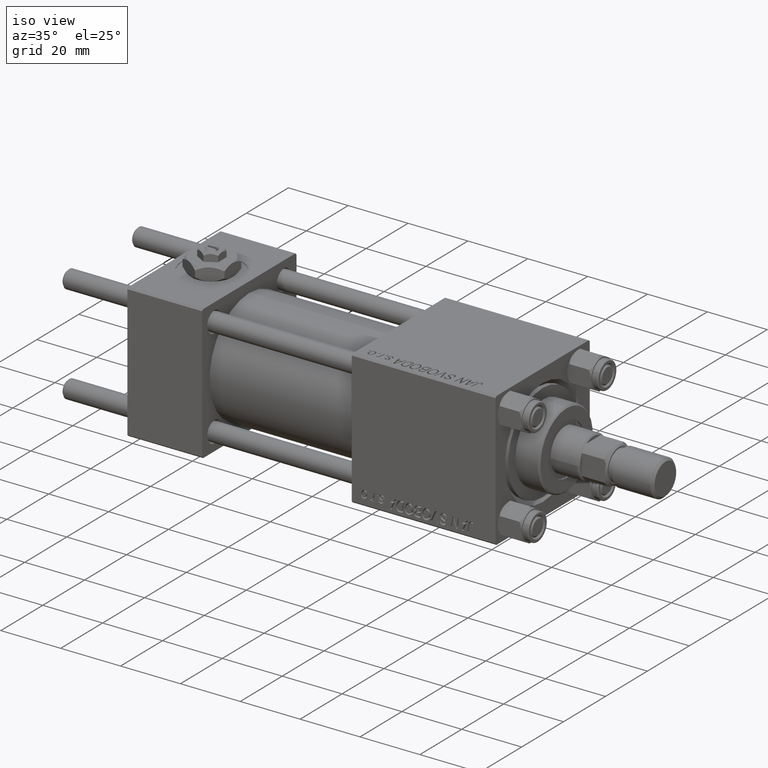
[diagram: clean part render]
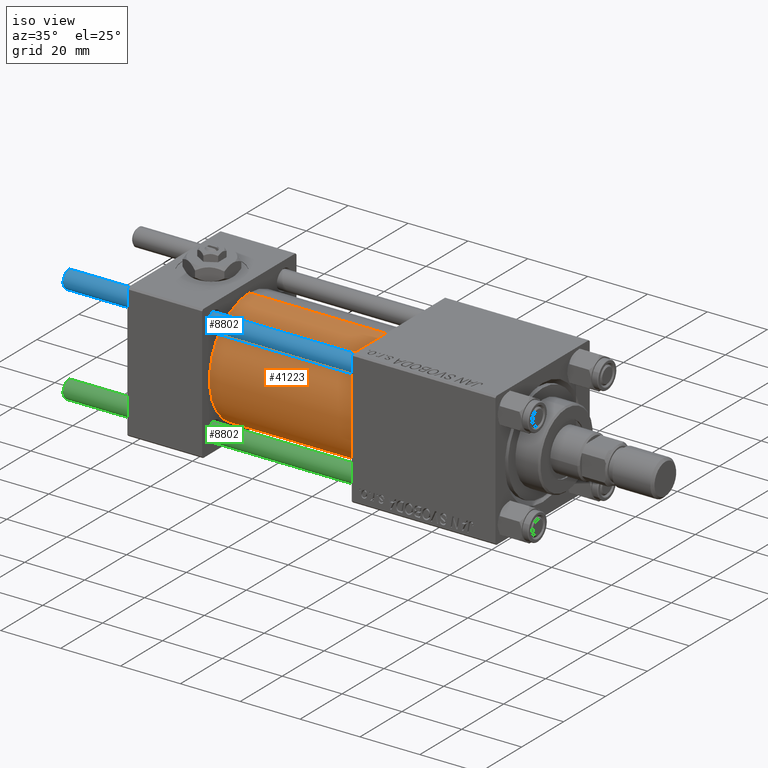
[diagram: same view with three faces highlighted in distinct colors, each labeled with its STEP entity id]
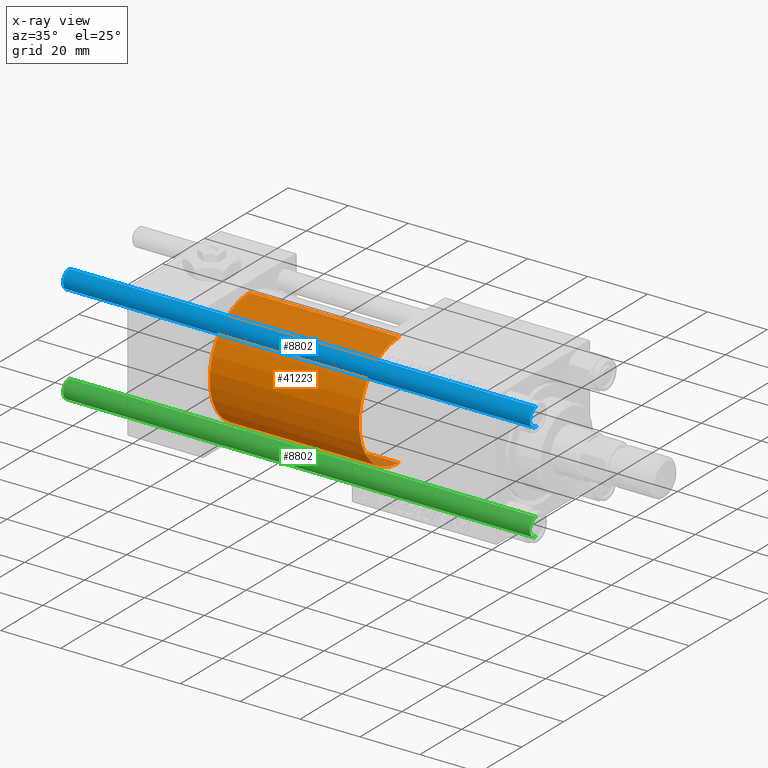
[diagram: x-ray of the same camera — body ghosted, the three highlighted faces saturated]
A machine part, iso view with three faces highlighted in distinct colors.
The next image is the same camera in x-ray (body ghosted, the three faces saturated) — at least one of them is partly hidden behind the body in this view.
Their STEP definitions:

[orange] entity #41223 — the highlighted cylindrical surface (partial cylindrical patch) has radius 19 mm, axis along (-1, -0, -0).
#843 = CARTESIAN_POINT ( 'NONE',  ( 75.00000000000001421, 0.000000000000000000, 0.000000000000000000 ) ) ;
#3151 = CARTESIAN_POINT ( 'NONE',  ( 75.00000000000001421, 2.326828918379970970E-15, -19.00000000000000000 ) ) ;
#3247 = AXIS2_PLACEMENT_3D ( 'NONE', #6762, #46779, #10705 ) ;
#3901 = VECTOR ( 'NONE', #21956, 1000.000000000000000 ) ;
#6444 = EDGE_CURVE ( 'NONE', #34576, #20000, #9312, .T. ) ;
#6762 = CARTESIAN_POINT ( 'NONE',  ( 75.00000000000001421, 0.000000000000000000, 0.000000000000000000 ) ) ;
#8308 = DIRECTION ( 'NONE',  ( 1.000000000000000000, -0.000000000000000000, 0.000000000000000000 ) ) ;
#9312 = LINE ( 'NONE', #9572, #3901 ) ;
#9572 = CARTESIAN_POINT ( 'NONE',  ( 75.00000000000001421, 0.000000000000000000, 19.00000000000000000 ) ) ;
#10611 = VERTEX_POINT ( 'NONE', #48091 ) ;
#10705 = DIRECTION ( 'NONE',  ( 0.000000000000000000, 0.000000000000000000, 1.000000000000000000 ) ) ;
#11592 = VECTOR ( 'NONE', #29809, 1000.000000000000000 ) ;
#12856 = EDGE_CURVE ( 'NONE', #20000, #10611, #13884, .T. ) ;
#13884 = CIRCLE ( 'NONE', #22312, 19.00000000000000000 ) ;
#17697 = CIRCLE ( 'NONE', #35351, 19.00000000000000000 ) ;
#18228 = LINE ( 'NONE', #34538, #11592 ) ;
#19350 = ORIENTED_EDGE ( 'NONE', *, *, #6444, .T. ) ;
#20000 = VERTEX_POINT ( 'NONE', #23204 ) ;
#20867 = DIRECTION ( 'NONE',  ( 1.000000000000000000, 0.000000000000000000, 0.000000000000000000 ) ) ;
#21191 = DIRECTION ( 'NONE',  ( 0.000000000000000000, 0.000000000000000000, 1.000000000000000000 ) ) ;
#21956 = DIRECTION ( 'NONE',  ( -1.000000000000000000, -0.000000000000000000, -0.000000000000000000 ) ) ;
#22148 = VERTEX_POINT ( 'NONE', #3151 ) ;
#22312 = AXIS2_PLACEMENT_3D ( 'NONE', #24625, #8308, #21191 ) ;
#23204 = CARTESIAN_POINT ( 'NONE',  ( 25.00000000000000000, 0.000000000000000000, 19.00000000000000000 ) ) ;
#23826 = ORIENTED_EDGE ( 'NONE', *, *, #46570, .F. ) ;
#24625 = CARTESIAN_POINT ( 'NONE',  ( 25.00000000000000000, 0.000000000000000000, 0.000000000000000000 ) ) ;
#24836 = ORIENTED_EDGE ( 'NONE', *, *, #12856, .T. ) ;
#25731 = CARTESIAN_POINT ( 'NONE',  ( 75.00000000000001421, 0.000000000000000000, 19.00000000000000000 ) ) ;
#26790 = EDGE_LOOP ( 'NONE', ( #38263, #23826, #19350, #24836 ) ) ;
#29809 = DIRECTION ( 'NONE',  ( -1.000000000000000000, -0.000000000000000000, -0.000000000000000000 ) ) ;
#32977 = DIRECTION ( 'NONE',  ( 0.000000000000000000, 0.000000000000000000, -1.000000000000000000 ) ) ;
#34538 = CARTESIAN_POINT ( 'NONE',  ( 75.00000000000001421, 2.326828918379970970E-15, -19.00000000000000000 ) ) ;
#34576 = VERTEX_POINT ( 'NONE', #25731 ) ;
#34665 = CYLINDRICAL_SURFACE ( 'NONE', #3247, 19.00000000000000000 ) ;
#35351 = AXIS2_PLACEMENT_3D ( 'NONE', #843, #20867, #32977 ) ;
#38263 = ORIENTED_EDGE ( 'NONE', *, *, #40386, .F. ) ;
#40386 = EDGE_CURVE ( 'NONE', #22148, #10611, #18228, .T. ) ;
#41223 = ADVANCED_FACE ( 'NONE', ( #48258 ), #34665, .T. ) ;
#46570 = EDGE_CURVE ( 'NONE', #34576, #22148, #17697, .T. ) ;
#46779 = DIRECTION ( 'NONE',  ( -1.000000000000000000, -0.000000000000000000, -0.000000000000000000 ) ) ;
#48091 = CARTESIAN_POINT ( 'NONE',  ( 25.00000000000000000, 2.326828918379970970E-15, -19.00000000000000000 ) ) ;
#48258 = FACE_OUTER_BOUND ( 'NONE', #26790, .T. ) ;

[blue] entity #8802 — the highlighted cylindrical surface (edge-blend (fillet) strip) has radius 3 mm, axis along (1, -0, 0).
#3026 = CIRCLE ( 'NONE', #32455, 3.000000000000000444 ) ;
#5032 = VECTOR ( 'NONE', #9391, 1000.000000000000000 ) ;
#6239 = VERTEX_POINT ( 'NONE', #15425 ) ;
#8802 = ADVANCED_FACE ( 'NONE', ( #13151 ), #21314, .T. ) ;
#9391 = DIRECTION ( 'NONE',  ( -0.000000000000000000, -0.000000000000000000, -1.000000000000000000 ) ) ;
#9465 = DIRECTION ( 'NONE',  ( -0.000000000000000000, -0.000000000000000000, -1.000000000000000000 ) ) ;
#13151 = FACE_OUTER_BOUND ( 'NONE', #49202, .T. ) ;
#14133 = DIRECTION ( 'NONE',  ( 0.000000000000000000, 0.000000000000000000, -1.000000000000000000 ) ) ;
#14659 = DIRECTION ( 'NONE',  ( 1.000000000000000000, 0.000000000000000000, 0.000000000000000000 ) ) ;
#14961 = AXIS2_PLACEMENT_3D ( 'NONE', #34133, #14133, #14659 ) ;
#15425 = CARTESIAN_POINT ( 'NONE',  ( 3.000000000000000444, 3.673940397442060361E-16, 156.5000000000000284 ) ) ;
#15446 = AXIS2_PLACEMENT_3D ( 'NONE', #29221, #9465, #25534 ) ;
#19984 = CIRCLE ( 'NONE', #14961, 3.000000000000000444 ) ;
#21314 = CYLINDRICAL_SURFACE ( 'NONE', #15446, 3.000000000000000444 ) ;
#21751 = ORIENTED_EDGE ( 'NONE', *, *, #36739, .T. ) ;
#25534 = DIRECTION ( 'NONE',  ( -1.000000000000000000, 0.000000000000000000, 0.000000000000000000 ) ) ;
#26683 = VERTEX_POINT ( 'NONE', #46648 ) ;
#29221 = CARTESIAN_POINT ( 'NONE',  ( 0.000000000000000000, 0.000000000000000000, 157.0000000000000000 ) ) ;
#29574 = VERTEX_POINT ( 'NONE', #43962 ) ;
#30171 = CARTESIAN_POINT ( 'NONE',  ( 0.000000000000000000, 0.000000000000000000, 0.4999999999999726885 ) ) ;
#31200 = EDGE_CURVE ( 'NONE', #26683, #29574, #31304, .T. ) ;
#31304 = LINE ( 'NONE', #47089, #32741 ) ;
#32455 = AXIS2_PLACEMENT_3D ( 'NONE', #30171, #51204, #35149 ) ;
#32583 = CARTESIAN_POINT ( 'NONE',  ( 3.000000000000000444, 3.673940397442060361E-16, 157.0000000000000000 ) ) ;
#32741 = VECTOR ( 'NONE', #46831, 1000.000000000000000 ) ;
#32992 = ORIENTED_EDGE ( 'NONE', *, *, #39784, .T. ) ;
#34133 = CARTESIAN_POINT ( 'NONE',  ( 0.000000000000000000, 0.000000000000000000, 156.5000000000000284 ) ) ;
#35149 = DIRECTION ( 'NONE',  ( 1.000000000000000000, 0.000000000000000000, 0.000000000000000000 ) ) ;
#35899 = CARTESIAN_POINT ( 'NONE',  ( 3.000000000000000444, 3.673940397442060361E-16, 0.4999999999999726885 ) ) ;
#36739 = EDGE_CURVE ( 'NONE', #47257, #29574, #3026, .T. ) ;
#39784 = EDGE_CURVE ( 'NONE', #26683, #6239, #19984, .T. ) ;
#43672 = ORIENTED_EDGE ( 'NONE', *, *, #45906, .T. ) ;
#43962 = CARTESIAN_POINT ( 'NONE',  ( -3.000000000000000444, 0.000000000000000000, 0.4999999999999726885 ) ) ;
#45453 = LINE ( 'NONE', #32583, #5032 ) ;
#45906 = EDGE_CURVE ( 'NONE', #6239, #47257, #45453, .T. ) ;
#46648 = CARTESIAN_POINT ( 'NONE',  ( -3.000000000000000444, 0.000000000000000000, 156.5000000000000284 ) ) ;
#46831 = DIRECTION ( 'NONE',  ( -0.000000000000000000, -0.000000000000000000, -1.000000000000000000 ) ) ;
#47055 = ORIENTED_EDGE ( 'NONE', *, *, #31200, .F. ) ;
#47089 = CARTESIAN_POINT ( 'NONE',  ( -3.000000000000000444, 0.000000000000000000, 157.0000000000000000 ) ) ;
#47257 = VERTEX_POINT ( 'NONE', #35899 ) ;
#49202 = EDGE_LOOP ( 'NONE', ( #32992, #43672, #21751, #47055 ) ) ;
#51204 = DIRECTION ( 'NONE',  ( -0.000000000000000000, -0.000000000000000000, 1.000000000000000000 ) ) ;

[green] entity #8802 — the highlighted cylindrical surface (edge-blend (fillet) strip) has radius 3 mm, axis along (-1, 0, 0).
#3026 = CIRCLE ( 'NONE', #32455, 3.000000000000000444 ) ;
#5032 = VECTOR ( 'NONE', #9391, 1000.000000000000000 ) ;
#6239 = VERTEX_POINT ( 'NONE', #15425 ) ;
#8802 = ADVANCED_FACE ( 'NONE', ( #13151 ), #21314, .T. ) ;
#9391 = DIRECTION ( 'NONE',  ( -0.000000000000000000, -0.000000000000000000, -1.000000000000000000 ) ) ;
#9465 = DIRECTION ( 'NONE',  ( -0.000000000000000000, -0.000000000000000000, -1.000000000000000000 ) ) ;
#13151 = FACE_OUTER_BOUND ( 'NONE', #49202, .T. ) ;
#14133 = DIRECTION ( 'NONE',  ( 0.000000000000000000, 0.000000000000000000, -1.000000000000000000 ) ) ;
#14659 = DIRECTION ( 'NONE',  ( 1.000000000000000000, 0.000000000000000000, 0.000000000000000000 ) ) ;
#14961 = AXIS2_PLACEMENT_3D ( 'NONE', #34133, #14133, #14659 ) ;
#15425 = CARTESIAN_POINT ( 'NONE',  ( 3.000000000000000444, 3.673940397442060361E-16, 156.5000000000000284 ) ) ;
#15446 = AXIS2_PLACEMENT_3D ( 'NONE', #29221, #9465, #25534 ) ;
#19984 = CIRCLE ( 'NONE', #14961, 3.000000000000000444 ) ;
#21314 = CYLINDRICAL_SURFACE ( 'NONE', #15446, 3.000000000000000444 ) ;
#21751 = ORIENTED_EDGE ( 'NONE', *, *, #36739, .T. ) ;
#25534 = DIRECTION ( 'NONE',  ( -1.000000000000000000, 0.000000000000000000, 0.000000000000000000 ) ) ;
#26683 = VERTEX_POINT ( 'NONE', #46648 ) ;
#29221 = CARTESIAN_POINT ( 'NONE',  ( 0.000000000000000000, 0.000000000000000000, 157.0000000000000000 ) ) ;
#29574 = VERTEX_POINT ( 'NONE', #43962 ) ;
#30171 = CARTESIAN_POINT ( 'NONE',  ( 0.000000000000000000, 0.000000000000000000, 0.4999999999999726885 ) ) ;
#31200 = EDGE_CURVE ( 'NONE', #26683, #29574, #31304, .T. ) ;
#31304 = LINE ( 'NONE', #47089, #32741 ) ;
#32455 = AXIS2_PLACEMENT_3D ( 'NONE', #30171, #51204, #35149 ) ;
#32583 = CARTESIAN_POINT ( 'NONE',  ( 3.000000000000000444, 3.673940397442060361E-16, 157.0000000000000000 ) ) ;
#32741 = VECTOR ( 'NONE', #46831, 1000.000000000000000 ) ;
#32992 = ORIENTED_EDGE ( 'NONE', *, *, #39784, .T. ) ;
#34133 = CARTESIAN_POINT ( 'NONE',  ( 0.000000000000000000, 0.000000000000000000, 156.5000000000000284 ) ) ;
#35149 = DIRECTION ( 'NONE',  ( 1.000000000000000000, 0.000000000000000000, 0.000000000000000000 ) ) ;
#35899 = CARTESIAN_POINT ( 'NONE',  ( 3.000000000000000444, 3.673940397442060361E-16, 0.4999999999999726885 ) ) ;
#36739 = EDGE_CURVE ( 'NONE', #47257, #29574, #3026, .T. ) ;
#39784 = EDGE_CURVE ( 'NONE', #26683, #6239, #19984, .T. ) ;
#43672 = ORIENTED_EDGE ( 'NONE', *, *, #45906, .T. ) ;
#43962 = CARTESIAN_POINT ( 'NONE',  ( -3.000000000000000444, 0.000000000000000000, 0.4999999999999726885 ) ) ;
#45453 = LINE ( 'NONE', #32583, #5032 ) ;
#45906 = EDGE_CURVE ( 'NONE', #6239, #47257, #45453, .T. ) ;
#46648 = CARTESIAN_POINT ( 'NONE',  ( -3.000000000000000444, 0.000000000000000000, 156.5000000000000284 ) ) ;
#46831 = DIRECTION ( 'NONE',  ( -0.000000000000000000, -0.000000000000000000, -1.000000000000000000 ) ) ;
#47055 = ORIENTED_EDGE ( 'NONE', *, *, #31200, .F. ) ;
#47089 = CARTESIAN_POINT ( 'NONE',  ( -3.000000000000000444, 0.000000000000000000, 157.0000000000000000 ) ) ;
#47257 = VERTEX_POINT ( 'NONE', #35899 ) ;
#49202 = EDGE_LOOP ( 'NONE', ( #32992, #43672, #21751, #47055 ) ) ;
#51204 = DIRECTION ( 'NONE',  ( -0.000000000000000000, -0.000000000000000000, 1.000000000000000000 ) ) ;